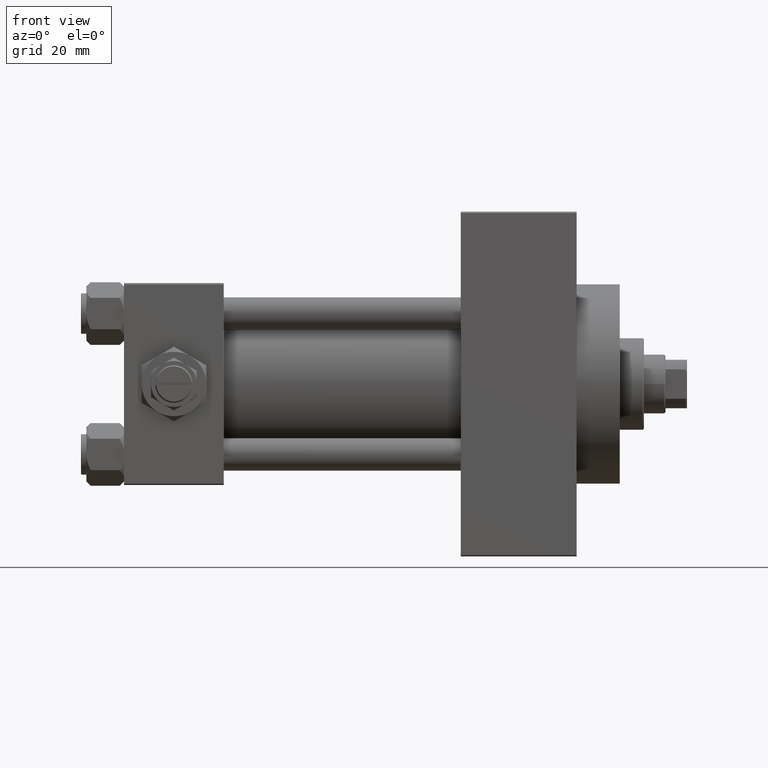
[diagram: clean part render]
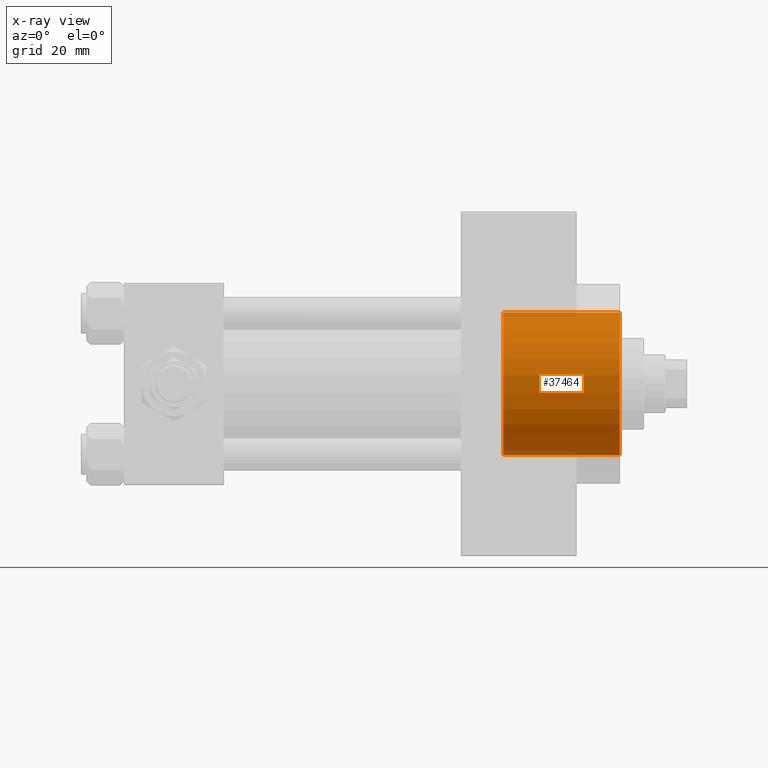
[diagram: x-ray — body ghosted, one internal face saturated and labeled with its STEP entity id]
A machine part, front view, then the same camera in x-ray: the body is ghosted and one INTERNAL B-rep face — a face not visible from any outside direction — is saturated and labeled: STEP entity #37464.
In plain terms, the highlighted cylindrical surface (partial cylindrical patch) has radius 26.5 mm, axis along (1, 0, 0).
Its self-contained STEP definition (entity closure, byte-faithful):
#3348 = DIRECTION ( 'NONE',  ( 1.000000000000000000, 0.000000000000000000, 0.000000000000000000 ) ) ;
#3814 = ORIENTED_EDGE ( 'NONE', *, *, #5372, .T. ) ;
#3982 = DIRECTION ( 'NONE',  ( 0.000000000000000000, 0.000000000000000000, -1.000000000000000000 ) ) ;
#5372 = EDGE_CURVE ( 'NONE', #46672, #12742, #12710, .T. ) ;
#6165 = CARTESIAN_POINT ( 'NONE',  ( 184.0000000000000000, 3.245314017740486554E-15, 26.50000000000000355 ) ) ;
#7256 = CARTESIAN_POINT ( 'NONE',  ( 140.7400000000000091, 0.000000000000000000, -26.50000000000000355 ) ) ;
#7407 = VECTOR ( 'NONE', #47720, 1000.000000000000000 ) ;
#8812 = VECTOR ( 'NONE', #13423, 1000.000000000000000 ) ;
#9229 = AXIS2_PLACEMENT_3D ( 'NONE', #12427, #20519, #12661 ) ;
#9298 = CIRCLE ( 'NONE', #47783, 26.50000000000000355 ) ;
#9748 = ORIENTED_EDGE ( 'NONE', *, *, #39710, .T. ) ;
#9855 = CARTESIAN_POINT ( 'NONE',  ( 140.7400000000000091, 0.000000000000000000, -26.50000000000000355 ) ) ;
#10327 = LINE ( 'NONE', #9855, #7407 ) ;
#12427 = CARTESIAN_POINT ( 'NONE',  ( 140.7400000000000091, 0.000000000000000000, 0.000000000000000000 ) ) ;
#12661 = DIRECTION ( 'NONE',  ( 0.000000000000000000, 0.000000000000000000, -1.000000000000000000 ) ) ;
#12710 = LINE ( 'NONE', #27723, #8812 ) ;
#12742 = VERTEX_POINT ( 'NONE', #6165 ) ;
#13393 = EDGE_CURVE ( 'NONE', #46672, #14391, #35654, .T. ) ;
#13423 = DIRECTION ( 'NONE',  ( 1.000000000000000000, -0.000000000000000000, -0.000000000000000000 ) ) ;
#14391 = VERTEX_POINT ( 'NONE', #7256 ) ;
#14551 = EDGE_LOOP ( 'NONE', ( #27273, #3814, #9748, #48254 ) ) ;
#14901 = DIRECTION ( 'NONE',  ( 0.000000000000000000, 0.000000000000000000, -1.000000000000000000 ) ) ;
#18735 = DIRECTION ( 'NONE',  ( 1.000000000000000000, 0.000000000000000000, 0.000000000000000000 ) ) ;
#19147 = VERTEX_POINT ( 'NONE', #23901 ) ;
#20519 = DIRECTION ( 'NONE',  ( 1.000000000000000000, -0.000000000000000000, -0.000000000000000000 ) ) ;
#22534 = CARTESIAN_POINT ( 'NONE',  ( 184.0000000000000000, 0.000000000000000000, 0.000000000000000000 ) ) ;
#23901 = CARTESIAN_POINT ( 'NONE',  ( 184.0000000000000000, 0.000000000000000000, -26.50000000000000355 ) ) ;
#27195 = CYLINDRICAL_SURFACE ( 'NONE', #9229, 26.50000000000000355 ) ;
#27273 = ORIENTED_EDGE ( 'NONE', *, *, #13393, .F. ) ;
#27723 = CARTESIAN_POINT ( 'NONE',  ( 140.7400000000000091, 3.245314017740486554E-15, 26.50000000000000355 ) ) ;
#29932 = EDGE_CURVE ( 'NONE', #14391, #19147, #10327, .T. ) ;
#32660 = CARTESIAN_POINT ( 'NONE',  ( 140.7400000000000091, 3.245314017740486554E-15, 26.50000000000000355 ) ) ;
#35654 = CIRCLE ( 'NONE', #43515, 26.50000000000000355 ) ;
#36760 = CARTESIAN_POINT ( 'NONE',  ( 140.7400000000000091, 0.000000000000000000, 0.000000000000000000 ) ) ;
#37464 = ADVANCED_FACE ( 'NONE', ( #46365 ), #27195, .F. ) ;
#39710 = EDGE_CURVE ( 'NONE', #12742, #19147, #9298, .T. ) ;
#43515 = AXIS2_PLACEMENT_3D ( 'NONE', #36760, #18735, #3982 ) ;
#46365 = FACE_OUTER_BOUND ( 'NONE', #14551, .T. ) ;
#46672 = VERTEX_POINT ( 'NONE', #32660 ) ;
#47720 = DIRECTION ( 'NONE',  ( 1.000000000000000000, -0.000000000000000000, -0.000000000000000000 ) ) ;
#47783 = AXIS2_PLACEMENT_3D ( 'NONE', #22534, #3348, #14901 ) ;
#48254 = ORIENTED_EDGE ( 'NONE', *, *, #29932, .F. ) ;